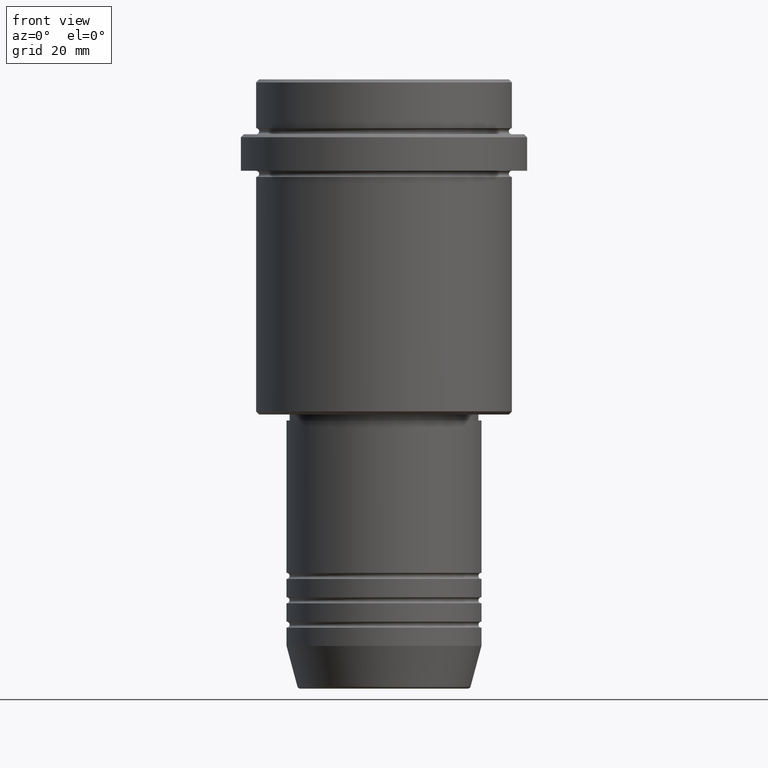
[diagram: clean part render]
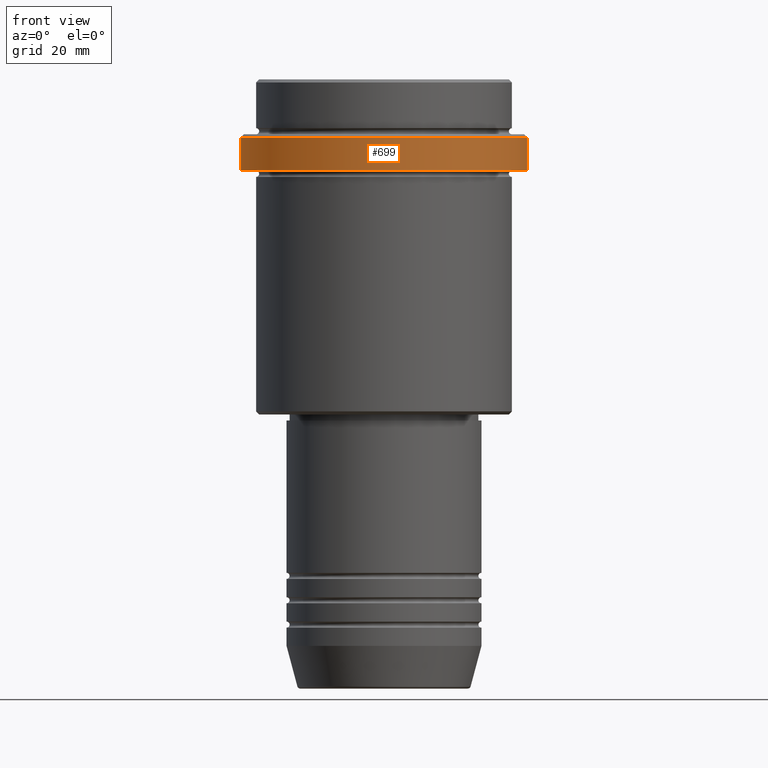
[diagram: same view with one face highlighted and labeled with its STEP entity id]
A machine part, front view. The second image highlights one B-rep face of the part: STEP entity #699.
In plain terms, the highlighted cylindrical surface (partial cylindrical patch) has radius 23.5 mm, axis along (-0, -0, 1).
Its self-contained STEP definition (entity closure, byte-faithful):
#17 = CARTESIAN_POINT ( 'NONE',  ( -23.50000000000000000, 2.877919977996280320E-15, -9.500000000000014211 ) ) ;
#100 = CARTESIAN_POINT ( 'NONE',  ( 23.50000000000000355, 0.000000000000000000, -15.00000000000000000 ) ) ;
#163 = DIRECTION ( 'NONE',  ( 1.000000000000000000, 0.000000000000000000, 0.000000000000000000 ) ) ;
#169 = DIRECTION ( 'NONE',  ( 1.000000000000000000, 0.000000000000000000, 0.000000000000000000 ) ) ;
#171 = EDGE_LOOP ( 'NONE', ( #771, #1181, #556, #290 ) ) ;
#186 = VERTEX_POINT ( 'NONE', #1305 ) ;
#251 = CIRCLE ( 'NONE', #615, 23.50000000000000355 ) ;
#267 = VERTEX_POINT ( 'NONE', #17 ) ;
#290 = ORIENTED_EDGE ( 'NONE', *, *, #1053, .T. ) ;
#320 = DIRECTION ( 'NONE',  ( 1.000000000000000000, 0.000000000000000000, 0.000000000000000000 ) ) ;
#395 = CARTESIAN_POINT ( 'NONE',  ( 23.50000000000000000, 0.000000000000000000, 0.000000000000000000 ) ) ;
#413 = LINE ( 'NONE', #973, #1142 ) ;
#419 = DIRECTION ( 'NONE',  ( 0.000000000000000000, 0.000000000000000000, -1.000000000000000000 ) ) ;
#427 = DIRECTION ( 'NONE',  ( -0.000000000000000000, -0.000000000000000000, 1.000000000000000000 ) ) ;
#480 = CARTESIAN_POINT ( 'NONE',  ( 0.000000000000000000, 0.000000000000000000, 0.000000000000000000 ) ) ;
#504 = EDGE_CURVE ( 'NONE', #659, #1153, #853, .T. ) ;
#556 = ORIENTED_EDGE ( 'NONE', *, *, #504, .T. ) ;
#563 = CARTESIAN_POINT ( 'NONE',  ( 0.000000000000000000, 0.000000000000000000, -15.00000000000000000 ) ) ;
#587 = CYLINDRICAL_SURFACE ( 'NONE', #798, 23.50000000000000000 ) ;
#615 = AXIS2_PLACEMENT_3D ( 'NONE', #563, #1156, #169 ) ;
#659 = VERTEX_POINT ( 'NONE', #100 ) ;
#699 = ADVANCED_FACE ( 'NONE', ( #919 ), #587, .T. ) ;
#771 = ORIENTED_EDGE ( 'NONE', *, *, #1168, .F. ) ;
#798 = AXIS2_PLACEMENT_3D ( 'NONE', #480, #823, #163 ) ;
#823 = DIRECTION ( 'NONE',  ( -0.000000000000000000, -0.000000000000000000, 1.000000000000000000 ) ) ;
#853 = LINE ( 'NONE', #395, #1196 ) ;
#918 = EDGE_CURVE ( 'NONE', #186, #659, #251, .T. ) ;
#919 = FACE_OUTER_BOUND ( 'NONE', #171, .T. ) ;
#973 = CARTESIAN_POINT ( 'NONE',  ( -23.50000000000000000, 2.877919977996280320E-15, 0.000000000000000000 ) ) ;
#993 = AXIS2_PLACEMENT_3D ( 'NONE', #1416, #419, #320 ) ;
#1053 = EDGE_CURVE ( 'NONE', #1153, #267, #1238, .T. ) ;
#1142 = VECTOR ( 'NONE', #427, 1000.000000000000000 ) ;
#1153 = VERTEX_POINT ( 'NONE', #1193 ) ;
#1156 = DIRECTION ( 'NONE',  ( -0.000000000000000000, -0.000000000000000000, 1.000000000000000000 ) ) ;
#1163 = DIRECTION ( 'NONE',  ( -0.000000000000000000, -0.000000000000000000, 1.000000000000000000 ) ) ;
#1168 = EDGE_CURVE ( 'NONE', #186, #267, #413, .T. ) ;
#1181 = ORIENTED_EDGE ( 'NONE', *, *, #918, .T. ) ;
#1193 = CARTESIAN_POINT ( 'NONE',  ( 23.50000000000000000, 0.000000000000000000, -9.500000000000014211 ) ) ;
#1196 = VECTOR ( 'NONE', #1163, 1000.000000000000000 ) ;
#1238 = CIRCLE ( 'NONE', #993, 23.50000000000000000 ) ;
#1305 = CARTESIAN_POINT ( 'NONE',  ( -23.50000000000000711, 2.877919977996281109E-15, -15.00000000000000000 ) ) ;
#1416 = CARTESIAN_POINT ( 'NONE',  ( 0.000000000000000000, 0.000000000000000000, -9.500000000000014211 ) ) ;